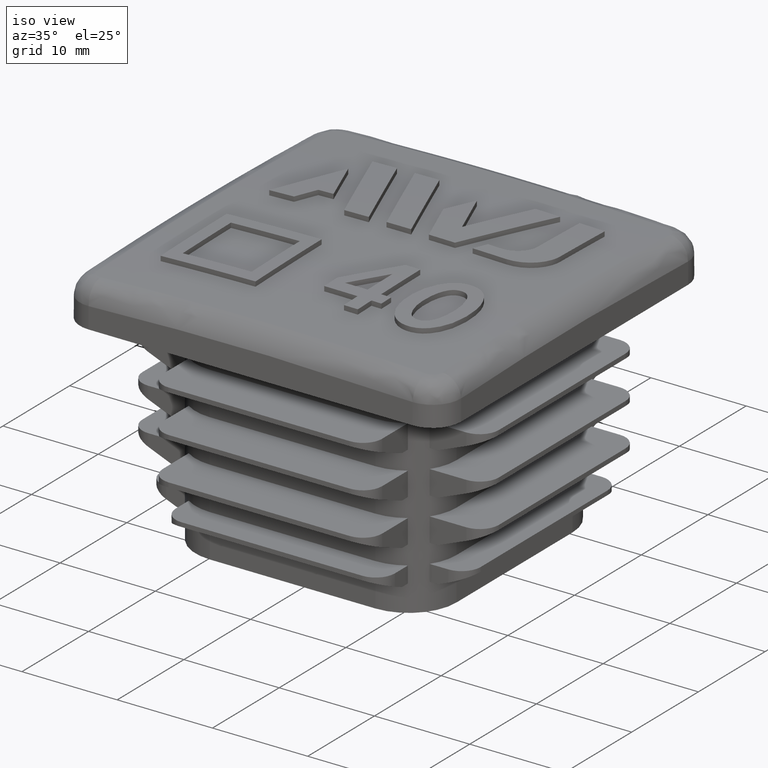
[diagram: clean part render]
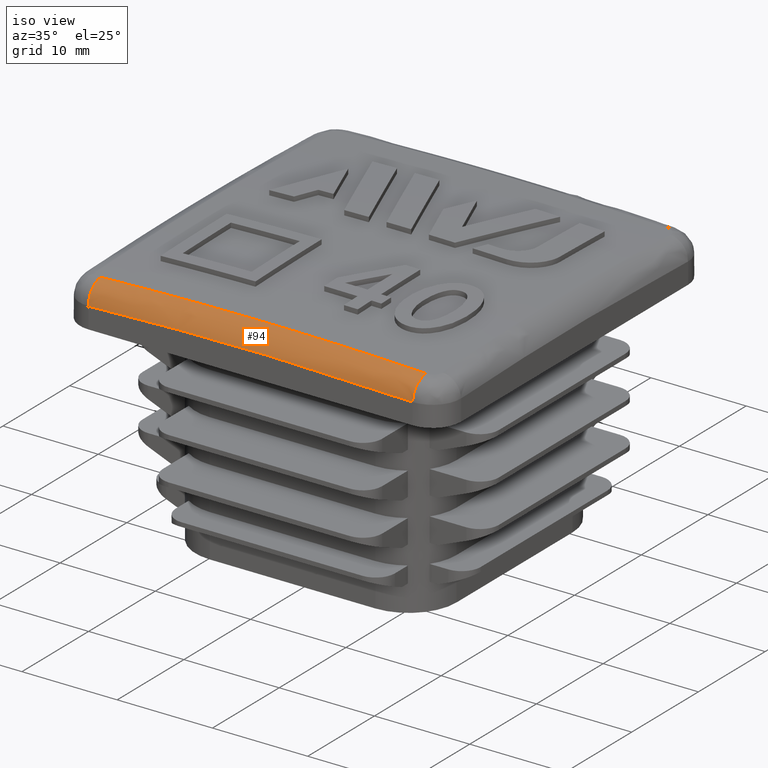
[diagram: same view with one face highlighted and labeled with its STEP entity id]
A machine part, iso view. The second image highlights one B-rep face of the part: STEP entity #94.
In plain terms, the highlighted face is a freeform B-spline surface patch.
Its self-contained STEP definition (entity closure, byte-faithful):
#94 = ADVANCED_FACE( '', ( #402 ), #403, .T. );
#402 = FACE_OUTER_BOUND( '', #1534, .T. );
#403 = ( B_SPLINE_SURFACE( 3, 2, ( ( #1536, #1537, #1538 ), ( #1539, #1540, #1541 ), ( #1542, #1543, #1544 ), ( #1545, #1546, #1547 ), ( #1548, #1549, #1550 ), ( #1551, #1552, #1553 ), ( #1554, #1555, #1556 ), ( #1557, #1558, #1559 ), ( #1560, #1561, #1562 ), ( #1563, #1564, #1565 ), ( #1566, #1567, #1568 ), ( #1569, #1570, #1571 ), ( #1572, #1573, #1574 ), ( #1575, #1576, #1577 ), ( #1578, #1579, #1580 ), ( #1581, #1582, #1583 ) ), .UNSPECIFIED., .F., .F., .F. )B_SPLINE_SURFACE_WITH_KNOTS( ( 4, 2, 2, 2, 2, 2, 2, 4 ), ( 3, 3 ), ( 0.000000000000000, 0.00850051080781736, 0.0127507662117260, 0.0170010216156347, 0.0212512770195434, 0.0233764047214977, 0.0255015324234521, 0.0340020432312694 ), ( 0.000000000000000, 1.00000000000000 ), .UNSPECIFIED. )RATIONAL_B_SPLINE_SURFACE( ( ( 1.00000000000000, 0.722217671729973, 1.00000000000000 ), ( 1.00000000000000, 0.722298539885973, 1.00000000000000 ), ( 1.00000000000000, 0.722393320820888, 1.00000000000000 ), ( 1.00000000000000, 0.722511745255813, 1.00000000000000 ), ( 1.00000000000000, 0.722546772308584, 1.00000000000000 ), ( 1.00000000000000, 0.722596003892540, 1.00000000000000 ), ( 1.00000000000000, 0.722609849361882, 1.00000000000000 ), ( 1.00000000000000, 0.722609872442476, 1.00000000000000 ), ( 1.00000000000000, 0.722596049352745, 1.00000000000000 ), ( 1.00000000000000, 0.722559140288188, 1.00000000000000 ), ( 1.00000000000000, 0.722544237256757, 1.00000000000000 ), ( 1.00000000000000, 0.722510693282043, 1.00000000000000 ), ( 1.00000000000000, 0.722492061761334, 1.00000000000000 ), ( 1.00000000000000, 0.722393344995146, 1.00000000000000 ), ( 1.00000000000000, 0.722298538255863, 1.00000000000000 ), ( 1.00000000000000, 0.722217671729972, 1.00000000000000 ) ) )BOUNDED_SURFACE(  )REPRESENTATION_ITEM( '' )GEOMETRIC_REPRESENTATION_ITEM(  )SURFACE(  ) );
#1534 = EDGE_LOOP( '', ( #3612, #3613, #3614, #3615 ) );
#1536 = CARTESIAN_POINT( '', ( -17.0000000000000, -20.0000000000000, 24.2123467996266 ) );
#1537 = CARTESIAN_POINT( '', ( -17.0782151844299, -20.0000000000000, 26.1261435689828 ) );
#1538 = CARTESIAN_POINT( '', ( -17.0815938246898, -18.0863934614362, 26.2088133326779 ) );
#1539 = CARTESIAN_POINT( '', ( -14.1676119587878, -20.0000000000000, 24.3281039985506 ) );
#1540 = CARTESIAN_POINT( '', ( -14.2332104064602, -20.0000000000000, 26.2419610850496 ) );
#1541 = CARTESIAN_POINT( '', ( -14.2360630053916, -18.0868676081667, 26.3250871473394 ) );
#1542 = CARTESIAN_POINT( '', ( -11.3349110374829, -20.0000000000000, 24.4158930485134 ) );
#1543 = CARTESIAN_POINT( '', ( -11.3877147251033, -20.0000000000049, 26.3296298806315 ) );
#1544 = CARTESIAN_POINT( '', ( -11.3900254456997, -18.0874084149443, 26.4132682702937 ) );
#1545 = CARTESIAN_POINT( '', ( -7.08537608674552, -20.0000000000000, 24.5041770568151 ) );
#1546 = CARTESIAN_POINT( '', ( -7.11860582324239, -19.9999999999975, 26.4176640999648 ) );
#1547 = CARTESIAN_POINT( '', ( -7.12007021918373, -18.0880928818924, 26.5019464034555 ) );
#1548 = CARTESIAN_POINT( '', ( -5.66878362058630, -20.0000000000000, 24.5263614366865 ) );
#1549 = CARTESIAN_POINT( '', ( -5.69542525023752, -20.0000000000000, 26.4397578143400 ) );
#1550 = CARTESIAN_POINT( '', ( -5.69660188829423, -18.0882953502698, 26.5242298207911 ) );
#1551 = CARTESIAN_POINT( '', ( -2.83543421707109, -20.0000000000000, 24.5559884533833 ) );
#1552 = CARTESIAN_POINT( '', ( -2.84880617730126, -20.0000000000000, 26.4692507685758 ) );
#1553 = CARTESIAN_POINT( '', ( -2.84939889304522, -18.0885799369428, 26.5539891009651 ) );
#1554 = CARTESIAN_POINT( '', ( -1.41867723079924, -20.0000000000000, 24.5634267061297 ) );
#1555 = CARTESIAN_POINT( '', ( -1.42536838862382, -20.0000000000049, 26.4766475036829 ) );
#1556 = CARTESIAN_POINT( '', ( -1.42566500779804, -18.0886599775837, 26.5614605602314 ) );
#1557 = CARTESIAN_POINT( '', ( 1.41500257327560, -20.0000000000000, 24.5634395410416 ) );
#1558 = CARTESIAN_POINT( '', ( 1.42167639966430, -19.9999999999951, 26.4766602712455 ) );
#1559 = CARTESIAN_POINT( '', ( 1.42197225053558, -18.0886601110009, 26.5614734523634 ) );
#1560 = CARTESIAN_POINT( '', ( 2.83192539124596, -20.0000000000000, 24.5560141080621 ) );
#1561 = CARTESIAN_POINT( '', ( 2.84528085273661, -20.0000000000025, 26.4692762921905 ) );
#1562 = CARTESIAN_POINT( '', ( 2.84587283943413, -18.0885801997444, 26.5540148702376 ) );
#1563 = CARTESIAN_POINT( '', ( 4.95743313286355, -20.0000000000000, 24.5338051970277 ) );
#1564 = CARTESIAN_POINT( '', ( 4.98074326614249, -19.9999999999988, 26.4471678990759 ) );
#1565 = CARTESIAN_POINT( '', ( 4.98177330559444, -18.0883668442478, 26.5317068121758 ) );
#1566 = CARTESIAN_POINT( '', ( 5.66595628017348, -20.0000000000000, 24.5245588034834 ) );
#1567 = CARTESIAN_POINT( '', ( 5.69257362529829, -20.0000000000000, 26.4379609016758 ) );
#1568 = CARTESIAN_POINT( '', ( 5.69374868383018, -18.0882806980463, 26.5224191401184 ) );
#1569 = CARTESIAN_POINT( '', ( 7.08304339514472, -20.0000000000000, 24.5024072414275 ) );
#1570 = CARTESIAN_POINT( '', ( 7.11624702165463, -20.0000000000000, 26.4158922914810 ) );
#1571 = CARTESIAN_POINT( '', ( 7.11770958199446, -18.0880868065027, 26.5001686871701 ) );
#1572 = CARTESIAN_POINT( '', ( 7.79163225830614, -20.0000000000000, 24.4895016598111 ) );
#1573 = CARTESIAN_POINT( '', ( 7.82811508470218, -20.0000000000000, 26.4030302139636 ) );
#1574 = CARTESIAN_POINT( '', ( 7.82972013431509, -18.0879791156742, 26.4872054913619 ) );
#1575 = CARTESIAN_POINT( '', ( 11.3343035846392, -20.0000000000000, 24.4159174040523 ) );
#1576 = CARTESIAN_POINT( '', ( 11.3871045725165, -20.0000000000000, 26.3296542122532 ) );
#1577 = CARTESIAN_POINT( '', ( 11.3894151808916, -18.0874085546228, 26.4132927343785 ) );
#1578 = CARTESIAN_POINT( '', ( 14.1675715826608, -20.0000000000000, 24.3281056483765 ) );
#1579 = CARTESIAN_POINT( '', ( 14.2331698473905, -19.9999999999803, 26.2419627358564 ) );
#1580 = CARTESIAN_POINT( '', ( 14.2360224391962, -18.0868676149398, 26.3250888049509 ) );
#1581 = CARTESIAN_POINT( '', ( 17.0000000000000, -20.0000000000000, 24.2123467996267 ) );
#1582 = CARTESIAN_POINT( '', ( 17.0782151844299, -20.0000000000000, 26.1261435689828 ) );
#1583 = CARTESIAN_POINT( '', ( 17.0815938246898, -18.0863934614362, 26.2088133326779 ) );
#3612 = ORIENTED_EDGE( '', *, *, #5762, .T. );
#3613 = ORIENTED_EDGE( '', *, *, #5710, .F. );
#3614 = ORIENTED_EDGE( '', *, *, #5759, .F. );
#3615 = ORIENTED_EDGE( '', *, *, #5763, .F. );
#5710 = EDGE_CURVE( '', #6494, #6496, #6497, .T. );
#5759 = EDGE_CURVE( '', #6544, #6494, #6587, .T. );
#5762 = EDGE_CURVE( '', #6591, #6496, #6592, .T. );
#5763 = EDGE_CURVE( '', #6591, #6544, #6593, .T. );
#6494 = VERTEX_POINT( '', #8225 );
#6496 = VERTEX_POINT( '', #8264 );
#6497 = B_SPLINE_CURVE_WITH_KNOTS( '', 3, ( #8265, #8266, #8267, #8268, #8269, #8270, #8271, #8272, #8273, #8274, #8275, #8276, #8277, #8278, #8279, #8280, #8281, #8282, #8283 ), .UNSPECIFIED., .F., .F., ( 4, 2, 2, 2, 1, 2, 1, 1, 2, 2, 4 ), ( 0.000000000000000, 0.00427065503617765, 0.00854131007235531, 0.0128119651085330, 0.0170826201447106, 0.0213532751808883, 0.0234886026989771, 0.0245562664580215, 0.0256239302170659, 0.0298945852532436, 0.0341652402894212 ), .UNSPECIFIED. );
#6544 = VERTEX_POINT( '', #8521 );
#6587 = CIRCLE( '', #8676, 2.00000000000000 );
#6591 = VERTEX_POINT( '', #8698 );
#6592 = CIRCLE( '', #8699, 2.00000000000000 );
#6593 = B_SPLINE_CURVE_WITH_KNOTS( '', 3, ( #8700, #8701, #8702, #8703, #8704, #8705, #8706, #8707, #8708, #8709, #8710, #8711, #8712, #8713, #8714, #8715, #8716, #8717, #8718 ), .UNSPECIFIED., .F., .F., ( 4, 2, 2, 1, 1, 2, 1, 2, 2, 2, 4 ), ( 0.000000000000000, 0.00425194047750189, 0.00850388095500378, 0.00956686607437926, 0.0106298511937547, 0.0127558214325057, 0.0170077619100076, 0.0212597023875095, 0.0255116428650113, 0.0297635833425132, 0.0340155238200151 ), .UNSPECIFIED. );
#8225 = CARTESIAN_POINT( '', ( -17.0815938246898, -18.0863934614362, 26.2088133326779 ) );
#8264 = CARTESIAN_POINT( '', ( 17.0815938246898, -18.0863934614362, 26.2088133326778 ) );
#8265 = CARTESIAN_POINT( '', ( -17.0815938246898, -18.0863934614362, 26.2088133326779 ) );
#8266 = CARTESIAN_POINT( '', ( -15.6586021193580, -18.0866305725108, 26.2669594868816 ) );
#8267 = CARTESIAN_POINT( '', ( -14.2355319583521, -18.0868809113734, 26.3180709521244 ) );
#8268 = CARTESIAN_POINT( '', ( -11.3892323766797, -18.0873838816569, 26.4060140843925 ) );
#8269 = CARTESIAN_POINT( '', ( -9.96600294366197, -18.0876366918784, 26.4428446429512 ) );
#8270 = CARTESIAN_POINT( '', ( -7.11938182979735, -18.0880929838162, 26.5019583263392 ) );
#8271 = CARTESIAN_POINT( '', ( -5.69599010921527, -18.0882954249946, 26.5242378943006 ) );
#8272 = CARTESIAN_POINT( '', ( -2.84904153337536, -18.0885799590817, 26.5539911564292 ) );
#8273 = CARTESIAN_POINT( '', ( -0.00192772722592572, -18.0887400002692, 26.5689299935227 ) );
#8274 = CARTESIAN_POINT( '', ( 2.84551903205959, -18.0885802215827, 26.5540168964118 ) );
#8275 = CARTESIAN_POINT( '', ( 4.98122811252987, -18.0883669054556, 26.5317133404852 ) );
#8276 = CARTESIAN_POINT( '', ( 6.04911362739683, -18.0882377066792, 26.5177843958314 ) );
#8277 = CARTESIAN_POINT( '', ( 7.47302250715216, -18.0880330540870, 26.4936997767505 ) );
#8278 = CARTESIAN_POINT( '', ( 8.18499724488894, -18.0879221684436, 26.4798279998540 ) );
#8279 = CARTESIAN_POINT( '', ( 9.96483445080131, -18.0876369000859, 26.4428747953738 ) );
#8280 = CARTESIAN_POINT( '', ( 11.3884857463503, -18.0873840136131, 26.4060356148127 ) );
#8281 = CARTESIAN_POINT( '', ( 14.2353596281038, -18.0868809418069, 26.3180778146601 ) );
#8282 = CARTESIAN_POINT( '', ( 15.6585822474172, -18.0866305758220, 26.2669602988870 ) );
#8283 = CARTESIAN_POINT( '', ( 17.0815938246898, -18.0863934614362, 26.2088133326779 ) );
#8521 = CARTESIAN_POINT( '', ( -17.0000000000000, -20.0000000000000, 24.2123467996266 ) );
#8676 = AXIS2_PLACEMENT_3D( '', #10789, #10790, #10791 );
#8698 = CARTESIAN_POINT( '', ( 17.0000000000000, -20.0000000000000, 24.2123467996267 ) );
#8699 = AXIS2_PLACEMENT_3D( '', #10795, #10796, #10797 );
#8700 = CARTESIAN_POINT( '', ( 17.0000000000000, -20.0000000000000, 24.2123467996267 ) );
#8701 = CARTESIAN_POINT( '', ( 15.5837857137658, -20.0000000000000, 24.2702262272460 ) );
#8702 = CARTESIAN_POINT( '', ( 14.1673613886503, -20.0000000000000, 24.3211115100579 ) );
#8703 = CARTESIAN_POINT( '', ( 11.3340860752181, -20.0000000000000, 24.4086744956605 ) );
#8704 = CARTESIAN_POINT( '', ( 9.91723505410410, -20.0000000000000, 24.4453511063228 ) );
#8705 = CARTESIAN_POINT( '', ( 8.14589939093992, -20.0000000000000, 24.4821432342435 ) );
#8706 = CARTESIAN_POINT( '', ( 7.43732537770705, -20.0000000000000, 24.4959547707476 ) );
#8707 = CARTESIAN_POINT( '', ( 6.02021785382887, -20.0000000000000, 24.5199356067212 ) );
#8708 = CARTESIAN_POINT( '', ( 4.95743313286490, -20.0000000000000, 24.5338051969933 ) );
#8709 = CARTESIAN_POINT( '', ( 2.83192539124330, -20.0000000000000, 24.5560141081307 ) );
#8710 = CARTESIAN_POINT( '', ( -0.00192024452680840, -20.0000000000000, 24.5708649589497 ) );
#8711 = CARTESIAN_POINT( '', ( -2.83543421707044, -20.0000000000000, 24.5559884533881 ) );
#8712 = CARTESIAN_POINT( '', ( -5.66878362058695, -20.0000000000000, 24.5263614366816 ) );
#8713 = CARTESIAN_POINT( '', ( -7.08537608674321, -20.0000000000000, 24.5041770567563 ) );
#8714 = CARTESIAN_POINT( '', ( -9.91839938723938, -20.0000000000000, 24.4453210513395 ) );
#8715 = CARTESIAN_POINT( '', ( -11.3348302617836, -20.0000000000000, 24.4086530294012 ) );
#8716 = CARTESIAN_POINT( '', ( -14.1675334462831, -20.0000000000000, 24.3211046590965 ) );
#8717 = CARTESIAN_POINT( '', ( -15.5838057684765, -20.0000000000000, 24.2702254076277 ) );
#8718 = CARTESIAN_POINT( '', ( -17.0000000000000, -20.0000000000000, 24.2123467996267 ) );
#10789 = CARTESIAN_POINT( '', ( -17.0000000000000, -18.0000000000000, 24.2123467996266 ) );
#10790 = DIRECTION( '', ( -0.999165902370460, 0.000000000000000, -0.0408350283485266 ) );
#10791 = DIRECTION( '', ( -0.0408350283485266, 0.000000000000000, 0.999165902370460 ) );
#10795 = CARTESIAN_POINT( '', ( 17.0000000000000, -18.0000000000000, 24.2123467996267 ) );
#10796 = DIRECTION( '', ( -0.999165902370460, -1.73327654723759E-015, 0.0408350283485259 ) );
#10797 = DIRECTION( '', ( 0.0408350283485259, 0.000000000000000, 0.999165902370460 ) );